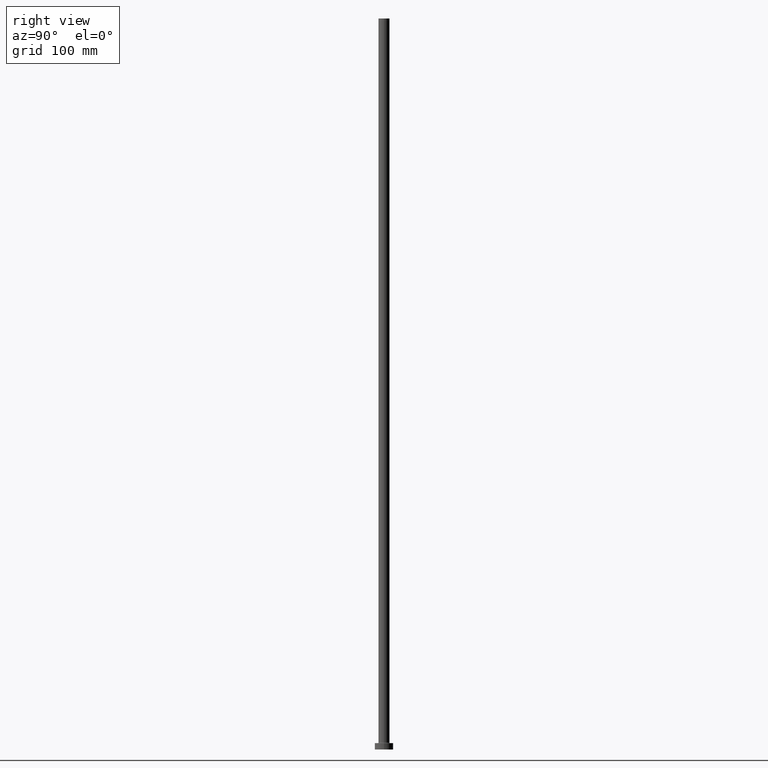
[diagram: clean part render]
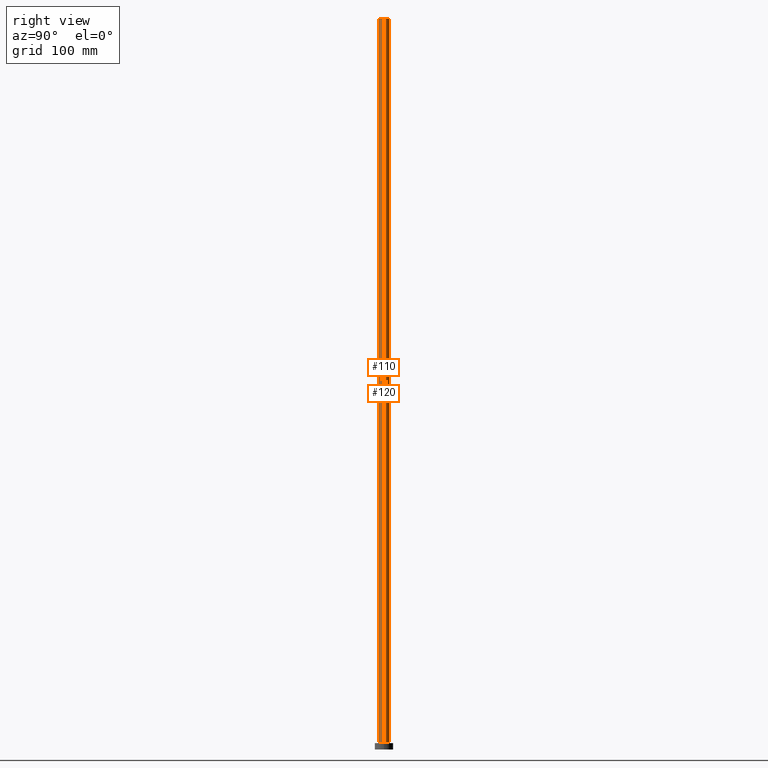
[diagram: same view with one multi-face feature highlighted, each face labeled with its STEP entity id]
A machine part, right view. The highlighted faces form ONE feature: a constant-radius fillet chain: 2 tangent blend faces with common blend radius 6 mm. The faces share edges in the B-rep.
Their STEP definitions:
[1] entity #120 (Cylinder):
#2 = CYLINDRICAL_SURFACE ( 'NONE', #186, 6.000000000000000888 ) ;
#12 = LINE ( 'NONE', #258, #292 ) ;
#32 = DIRECTION ( 'NONE',  ( -0.000000000000000000, -0.000000000000000000, -1.000000000000000000 ) ) ;
#40 = CARTESIAN_POINT ( 'NONE',  ( 0.000000000000000000, 0.000000000000000000, 800.0000000000000000 ) ) ;
#55 = CIRCLE ( 'NONE', #392, 6.000000000000000888 ) ;
#71 = ORIENTED_EDGE ( 'NONE', *, *, #142, .T. ) ;
#76 = EDGE_LOOP ( 'NONE', ( #123, #71, #131, #156 ) ) ;
#100 = VECTOR ( 'NONE', #323, 1000.000000000000000 ) ;
#116 = DIRECTION ( 'NONE',  ( 0.000000000000000000, 0.000000000000000000, 1.000000000000000000 ) ) ;
#120 = ADVANCED_FACE ( 'NONE', ( #453 ), #2, .T. ) ;
#123 = ORIENTED_EDGE ( 'NONE', *, *, #228, .F. ) ;
#131 = ORIENTED_EDGE ( 'NONE', *, *, #246, .T. ) ;
#142 = EDGE_CURVE ( 'NONE', #395, #390, #176, .T. ) ;
#156 = ORIENTED_EDGE ( 'NONE', *, *, #203, .F. ) ;
#173 = CARTESIAN_POINT ( 'NONE',  ( 6.000000000000000888, 7.347880794884120722E-16, 800.0000000000000000 ) ) ;
#176 = LINE ( 'NONE', #173, #100 ) ;
#186 = AXIS2_PLACEMENT_3D ( 'NONE', #40, #32, #277 ) ;
#197 = DIRECTION ( 'NONE',  ( -0.000000000000000000, -0.000000000000000000, -1.000000000000000000 ) ) ;
#203 = EDGE_CURVE ( 'NONE', #402, #213, #12, .T. ) ;
#206 = CARTESIAN_POINT ( 'NONE',  ( 0.000000000000000000, 0.000000000000000000, 800.0000000000000000 ) ) ;
#213 = VERTEX_POINT ( 'NONE', #398 ) ;
#228 = EDGE_CURVE ( 'NONE', #395, #402, #55, .T. ) ;
#246 = EDGE_CURVE ( 'NONE', #390, #213, #399, .T. ) ;
#258 = CARTESIAN_POINT ( 'NONE',  ( -6.000000000000000888, 0.000000000000000000, 800.0000000000000000 ) ) ;
#270 = CARTESIAN_POINT ( 'NONE',  ( 0.000000000000000000, 0.000000000000000000, 7.499999999999951150 ) ) ;
#277 = DIRECTION ( 'NONE',  ( -1.000000000000000000, 0.000000000000000000, 0.000000000000000000 ) ) ;
#292 = VECTOR ( 'NONE', #197, 1000.000000000000000 ) ;
#323 = DIRECTION ( 'NONE',  ( -0.000000000000000000, -0.000000000000000000, -1.000000000000000000 ) ) ;
#326 = CARTESIAN_POINT ( 'NONE',  ( 6.000000000000000888, 7.347880794884120722E-16, 800.0000000000000000 ) ) ;
#349 = AXIS2_PLACEMENT_3D ( 'NONE', #270, #442, #405 ) ;
#362 = CARTESIAN_POINT ( 'NONE',  ( -6.000000000000000888, 0.000000000000000000, 800.0000000000000000 ) ) ;
#366 = CARTESIAN_POINT ( 'NONE',  ( 6.000000000000000888, 7.347880794884120722E-16, 7.499999999999951150 ) ) ;
#390 = VERTEX_POINT ( 'NONE', #366 ) ;
#392 = AXIS2_PLACEMENT_3D ( 'NONE', #206, #116, #410 ) ;
#395 = VERTEX_POINT ( 'NONE', #326 ) ;
#398 = CARTESIAN_POINT ( 'NONE',  ( -6.000000000000000888, 0.000000000000000000, 7.499999999999951150 ) ) ;
#399 = CIRCLE ( 'NONE', #349, 6.000000000000000888 ) ;
#402 = VERTEX_POINT ( 'NONE', #362 ) ;
#405 = DIRECTION ( 'NONE',  ( 1.000000000000000000, 0.000000000000000000, 0.000000000000000000 ) ) ;
#410 = DIRECTION ( 'NONE',  ( 1.000000000000000000, 0.000000000000000000, 0.000000000000000000 ) ) ;
#442 = DIRECTION ( 'NONE',  ( 0.000000000000000000, 0.000000000000000000, 1.000000000000000000 ) ) ;
#453 = FACE_OUTER_BOUND ( 'NONE', #76, .T. ) ;
[2] entity #110 (Cylinder):
#12 = LINE ( 'NONE', #258, #292 ) ;
#30 = CARTESIAN_POINT ( 'NONE',  ( 0.000000000000000000, 0.000000000000000000, 800.0000000000000000 ) ) ;
#35 = ORIENTED_EDGE ( 'NONE', *, *, #278, .T. ) ;
#41 = DIRECTION ( 'NONE',  ( 1.000000000000000000, 0.000000000000000000, 0.000000000000000000 ) ) ;
#43 = AXIS2_PLACEMENT_3D ( 'NONE', #250, #218, #41 ) ;
#70 = ORIENTED_EDGE ( 'NONE', *, *, #142, .F. ) ;
#99 = CIRCLE ( 'NONE', #211, 6.000000000000000888 ) ;
#100 = VECTOR ( 'NONE', #323, 1000.000000000000000 ) ;
#110 = ADVANCED_FACE ( 'NONE', ( #413 ), #350, .T. ) ;
#119 = CARTESIAN_POINT ( 'NONE',  ( 0.000000000000000000, 0.000000000000000000, 7.499999999999951150 ) ) ;
#124 = DIRECTION ( 'NONE',  ( 0.000000000000000000, 0.000000000000000000, 1.000000000000000000 ) ) ;
#142 = EDGE_CURVE ( 'NONE', #395, #390, #176, .T. ) ;
#169 = DIRECTION ( 'NONE',  ( -0.000000000000000000, -0.000000000000000000, -1.000000000000000000 ) ) ;
#173 = CARTESIAN_POINT ( 'NONE',  ( 6.000000000000000888, 7.347880794884120722E-16, 800.0000000000000000 ) ) ;
#176 = LINE ( 'NONE', #173, #100 ) ;
#197 = DIRECTION ( 'NONE',  ( -0.000000000000000000, -0.000000000000000000, -1.000000000000000000 ) ) ;
#203 = EDGE_CURVE ( 'NONE', #402, #213, #12, .T. ) ;
#211 = AXIS2_PLACEMENT_3D ( 'NONE', #119, #124, #265 ) ;
#213 = VERTEX_POINT ( 'NONE', #398 ) ;
#217 = CIRCLE ( 'NONE', #43, 6.000000000000000888 ) ;
#218 = DIRECTION ( 'NONE',  ( 0.000000000000000000, 0.000000000000000000, 1.000000000000000000 ) ) ;
#250 = CARTESIAN_POINT ( 'NONE',  ( 0.000000000000000000, 0.000000000000000000, 800.0000000000000000 ) ) ;
#258 = CARTESIAN_POINT ( 'NONE',  ( -6.000000000000000888, 0.000000000000000000, 800.0000000000000000 ) ) ;
#265 = DIRECTION ( 'NONE',  ( 1.000000000000000000, 0.000000000000000000, 0.000000000000000000 ) ) ;
#278 = EDGE_CURVE ( 'NONE', #213, #390, #99, .T. ) ;
#282 = ORIENTED_EDGE ( 'NONE', *, *, #203, .T. ) ;
#286 = ORIENTED_EDGE ( 'NONE', *, *, #384, .F. ) ;
#287 = EDGE_LOOP ( 'NONE', ( #70, #286, #282, #35 ) ) ;
#292 = VECTOR ( 'NONE', #197, 1000.000000000000000 ) ;
#312 = DIRECTION ( 'NONE',  ( -1.000000000000000000, 0.000000000000000000, 0.000000000000000000 ) ) ;
#323 = DIRECTION ( 'NONE',  ( -0.000000000000000000, -0.000000000000000000, -1.000000000000000000 ) ) ;
#326 = CARTESIAN_POINT ( 'NONE',  ( 6.000000000000000888, 7.347880794884120722E-16, 800.0000000000000000 ) ) ;
#350 = CYLINDRICAL_SURFACE ( 'NONE', #428, 6.000000000000000888 ) ;
#362 = CARTESIAN_POINT ( 'NONE',  ( -6.000000000000000888, 0.000000000000000000, 800.0000000000000000 ) ) ;
#366 = CARTESIAN_POINT ( 'NONE',  ( 6.000000000000000888, 7.347880794884120722E-16, 7.499999999999951150 ) ) ;
#384 = EDGE_CURVE ( 'NONE', #402, #395, #217, .T. ) ;
#390 = VERTEX_POINT ( 'NONE', #366 ) ;
#395 = VERTEX_POINT ( 'NONE', #326 ) ;
#398 = CARTESIAN_POINT ( 'NONE',  ( -6.000000000000000888, 0.000000000000000000, 7.499999999999951150 ) ) ;
#402 = VERTEX_POINT ( 'NONE', #362 ) ;
#413 = FACE_OUTER_BOUND ( 'NONE', #287, .T. ) ;
#428 = AXIS2_PLACEMENT_3D ( 'NONE', #30, #169, #312 ) ;